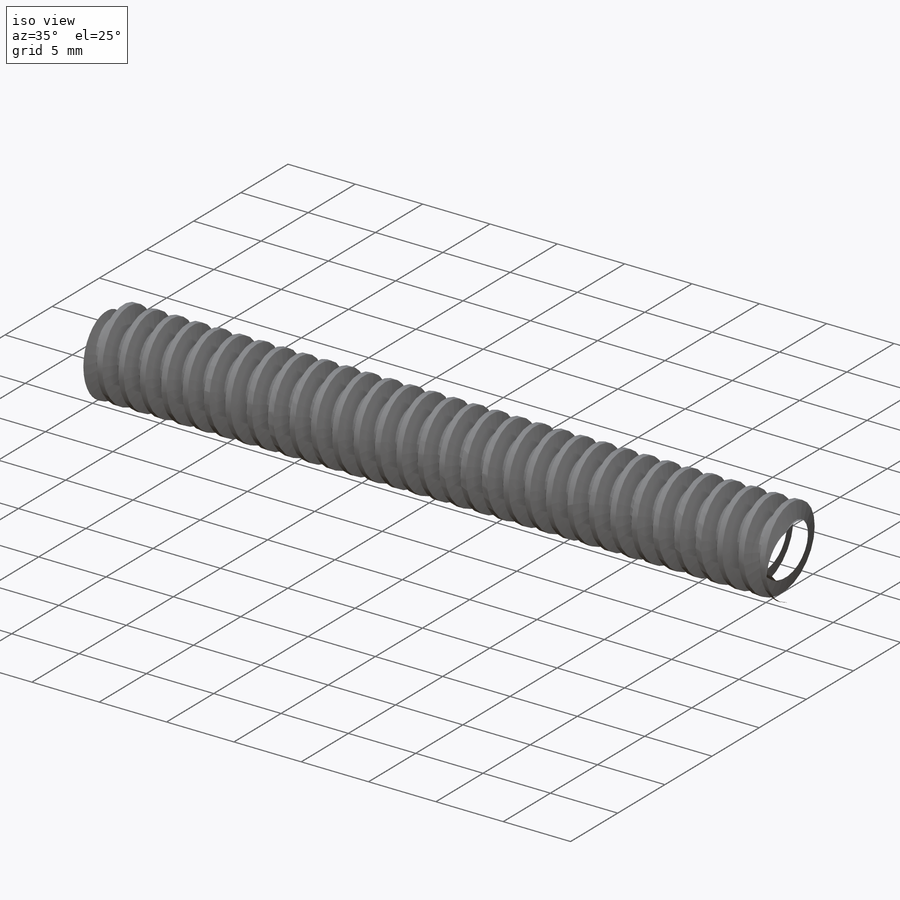
[diagram: iso view]
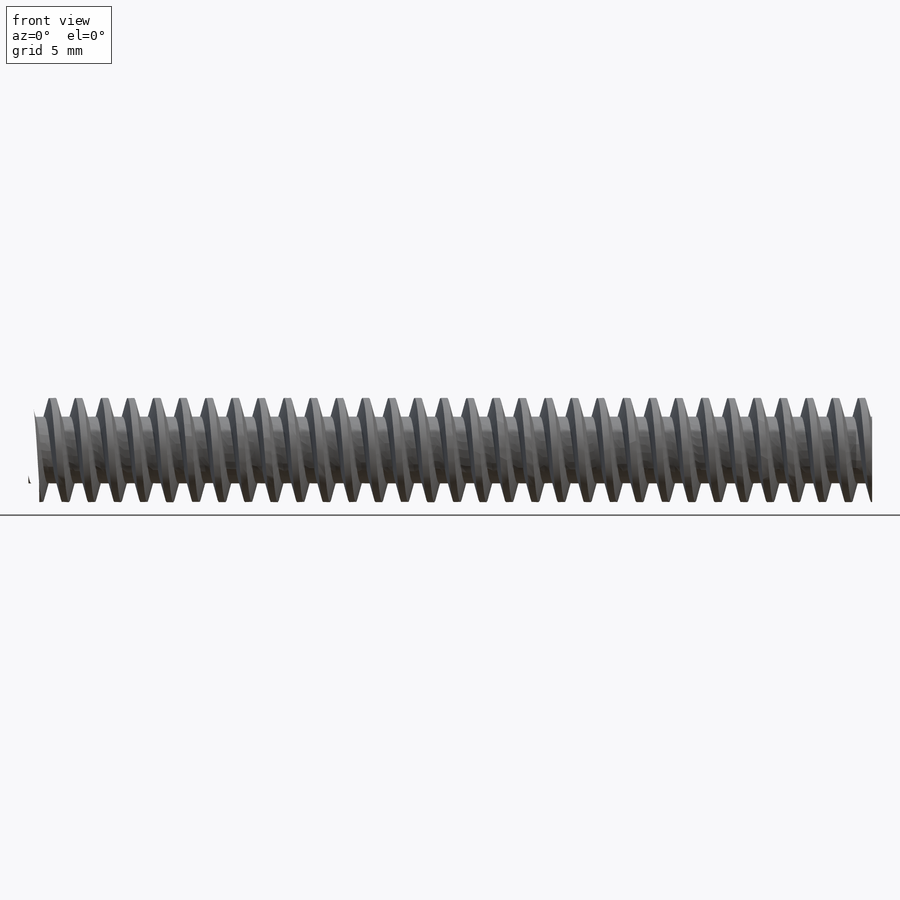
[diagram: front view]
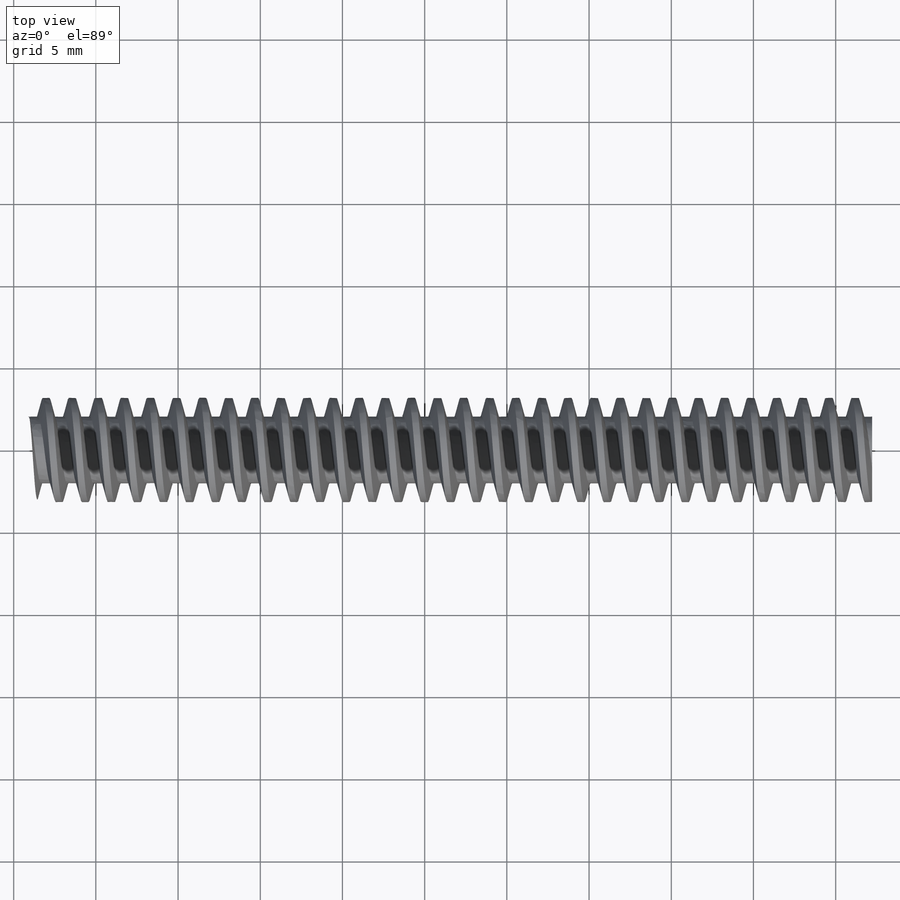
[diagram: top view]
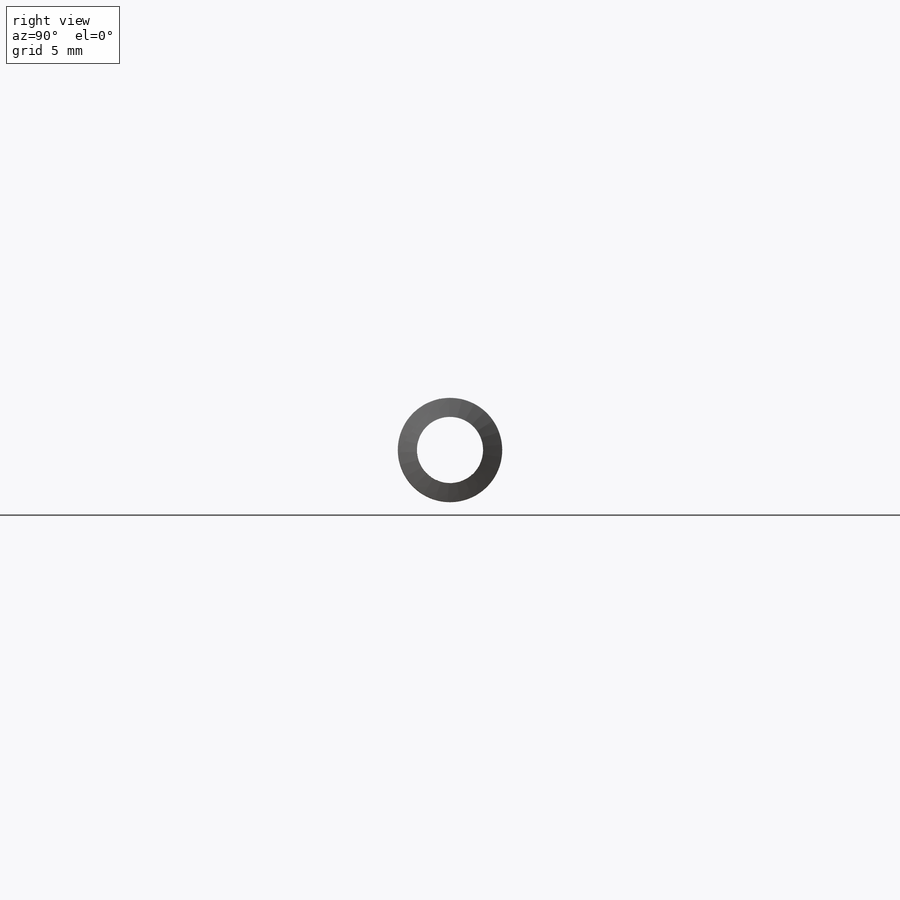
[diagram: right view]
SOLIDWORKS PART (.sldprt)
format: sldprt  version: not decoded by parser v0  size: 903,168 bytes
history: native  units: mm
features: sketch x5, cut_revolve x2, material x1, revolve x1, helix x1, sweep x1 (+13 scaffold rows collapsed)
feature tree (24):
  scaffold x13  (default folders/planes/origin — collapsed)
  material  "Material <not specified>"
  sketch  "Sketch1"  dims[c1.D1=6.35mm c1.D2=69.85mm c1.D3=7.62mm c1.D4=2.54mm c1.D5=~9.754185mm c2.D5=35.0deg c2.D6=7.62mm c2.D7=12.7mm]
  revolve  "Revolve1"  Angle=360deg
  sketch  "Sketch2"  dims[D1=5.3975mm]
  helix  "Helix/Spiral1"  Pitch=60.325mm
  sketch  "Sketch3"  dims[c1.D1=6.35mm c1.D2=~0.262354mm c2.D2=~69.965005deg c3.D2=~0.844879mm c4.D2=14.5deg c4.D3=~0.294243mm c4.D4=6.35mm c4.D1=~0.856515mm c5.D1=14.5deg c5.D2=4.064mm c5.D3=6.35mm c5.D4=~0.294234mm c6.D2=6.35mm c6.D1=~1.515439mm c7.D1=14.5deg c7.D2=6.35mm c7.D3=4.064mm c7.D4=~0.294234mm]
  sweep  "Cut-Sweep1"
  sketch  "Sketch4"  dims[c1.D1=3.937mm c1.D2=~1.802735mm c2.D1=~0.428655mm c3.D1=45.0deg c3.D2=~1.782531mm c4.D2=60.0deg c4.D3=0.127mm c4.D4=0.635mm c4.D5=~3.575478mm c4.D1=3.175mm c5.D2=3.81mm c5.D1=3.175mm]
  cut_revolve  "Cut-Revolve1"  Angle=360deg
  sketch  "Sketch5"  dims[D1=3.1496mm D2=17.78mm]
  cut_revolve  "Cut-Revolve2"  Angle=360deg
decode coverage: 9 of 10 modeling features carry decoded parameters
note: ~ marks probable driven/reference dimensions
note: suppression state not decoded; provenance and decode notes live in map.json
